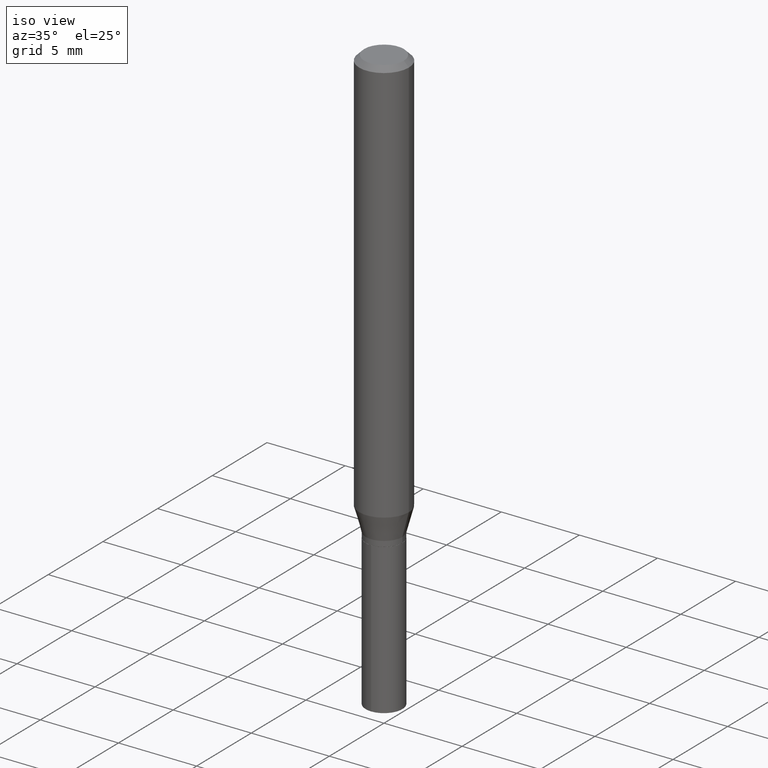
[diagram: clean part render]
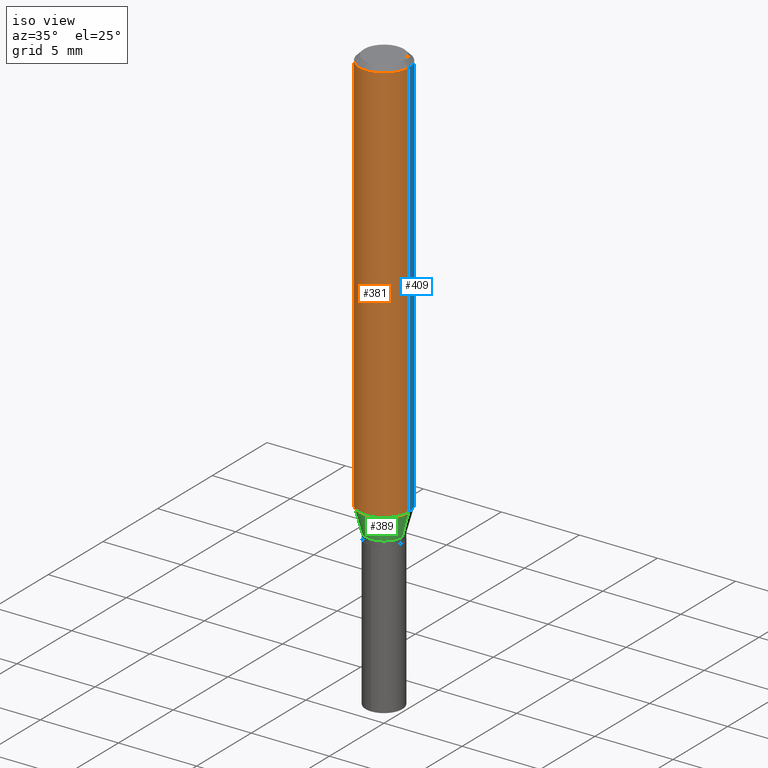
[diagram: same view with three faces highlighted in distinct colors, each labeled with its STEP entity id]
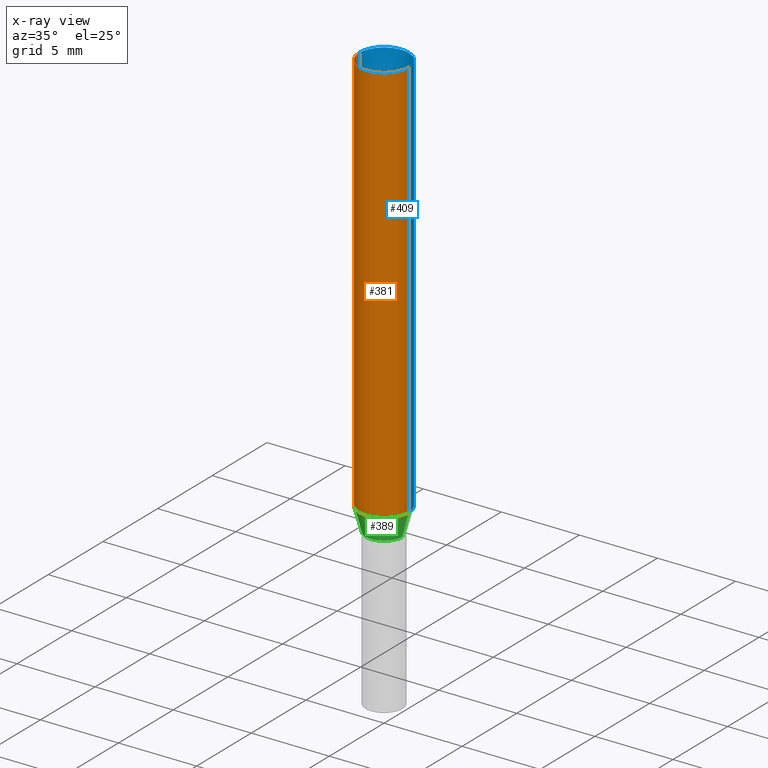
[diagram: x-ray of the same camera — body ghosted, the three highlighted faces saturated]
A machine part, iso view with three faces highlighted in distinct colors.
The next image is the same camera in x-ray (body ghosted, the three faces saturated) — at least one of them is partly hidden behind the body in this view.
Their STEP definitions:

[orange] entity #381 — the highlighted cylindrical surface (edge-blend (fillet) strip) has radius 1.5875 mm, axis along (-0, 0, 1).
#1 = LINE ( 'NONE', #158, #121 ) ;
#45 = AXIS2_PLACEMENT_3D ( 'NONE', #346, #351, #57 ) ;
#50 = DIRECTION ( 'NONE',  ( -2.445468806185136877E-29, 3.491481338843145188E-15, 1.000000000000000000 ) ) ;
#54 = LINE ( 'NONE', #465, #184 ) ;
#57 = DIRECTION ( 'NONE',  ( 1.000000000000000000, -6.982962677686266711E-15, 0.000000000000000000 ) ) ;
#60 = EDGE_CURVE ( 'NONE', #123, #269, #1, .T. ) ;
#70 = EDGE_LOOP ( 'NONE', ( #182, #419, #395, #254 ) ) ;
#105 = CARTESIAN_POINT ( 'NONE',  ( 0.06250000000000012490, -4.016789281031512616E-15, -1.025454174377005589 ) ) ;
#121 = VECTOR ( 'NONE', #304, 39.37007874015748143 ) ;
#122 = EDGE_CURVE ( 'NONE', #123, #454, #240, .T. ) ;
#123 = VERTEX_POINT ( 'NONE', #207 ) ;
#158 = CARTESIAN_POINT ( 'NONE',  ( -0.06250000000000006939, 4.440892098500631092E-16, -3.074334431409319267E-30 ) ) ;
#177 = CARTESIAN_POINT ( 'NONE',  ( 2.507716195611300644E-29, -3.580354113676120158E-15, -1.025454174377005589 ) ) ;
#182 = ORIENTED_EDGE ( 'NONE', *, *, #60, .F. ) ;
#184 = VECTOR ( 'NONE', #50, 39.37007874015748143 ) ;
#188 = CARTESIAN_POINT ( 'NONE',  ( -0.06250000000000000000, -1.367909605355765863E-15, -0.01250000000000008916 ) ) ;
#206 = CARTESIAN_POINT ( 'NONE',  ( 0.000000000000000000, 0.000000000000000000, 0.000000000000000000 ) ) ;
#207 = CARTESIAN_POINT ( 'NONE',  ( -0.06250000000000012490, -3.136264903826056358E-15, -1.025454174377005589 ) ) ;
#209 = DIRECTION ( 'NONE',  ( -2.445468806185136597E-29, 3.491481338843145583E-15, 1.000000000000000000 ) ) ;
#225 = AXIS2_PLACEMENT_3D ( 'NONE', #177, #385, #287 ) ;
#240 = CIRCLE ( 'NONE', #225, 0.06250000000000012490 ) ;
#254 = ORIENTED_EDGE ( 'NONE', *, *, #372, .F. ) ;
#269 = VERTEX_POINT ( 'NONE', #188 ) ;
#272 = CIRCLE ( 'NONE', #45, 0.06250000000000000000 ) ;
#287 = DIRECTION ( 'NONE',  ( 1.000000000000000000, -6.982962677686264344E-15, 0.000000000000000000 ) ) ;
#303 = VERTEX_POINT ( 'NONE', #411 ) ;
#304 = DIRECTION ( 'NONE',  ( -2.445468806185136877E-29, 3.491481338843145188E-15, 1.000000000000000000 ) ) ;
#346 = CARTESIAN_POINT ( 'NONE',  ( 3.056836007731442729E-31, -4.364351673553962300E-17, -0.01250000000000008916 ) ) ;
#349 = EDGE_CURVE ( 'NONE', #454, #303, #54, .T. ) ;
#351 = DIRECTION ( 'NONE',  ( -2.445468806185136597E-29, 3.491481338843145583E-15, 1.000000000000000000 ) ) ;
#372 = EDGE_CURVE ( 'NONE', #269, #303, #272, .T. ) ;
#381 = ADVANCED_FACE ( 'NONE', ( #393 ), #463, .T. ) ;
#385 = DIRECTION ( 'NONE',  ( -2.445468806185136597E-29, 3.491481338843145583E-15, 1.000000000000000000 ) ) ;
#393 = FACE_OUTER_BOUND ( 'NONE', #70, .T. ) ;
#395 = ORIENTED_EDGE ( 'NONE', *, *, #349, .T. ) ;
#411 = CARTESIAN_POINT ( 'NONE',  ( 0.06250000000000000000, -4.800786840909313294E-16, -0.01250000000000008916 ) ) ;
#419 = ORIENTED_EDGE ( 'NONE', *, *, #122, .T. ) ;
#435 = DIRECTION ( 'NONE',  ( 1.000000000000000000, -6.982962677686266711E-15, 4.876176775795935793E-29 ) ) ;
#454 = VERTEX_POINT ( 'NONE', #105 ) ;
#460 = AXIS2_PLACEMENT_3D ( 'NONE', #206, #209, #435 ) ;
#463 = CYLINDRICAL_SURFACE ( 'NONE', #460, 0.06250000000000006939 ) ;
#465 = CARTESIAN_POINT ( 'NONE',  ( 0.06250000000000006939, -4.364351673553921624E-16, 3.047610484872463374E-30 ) ) ;

[blue] entity #409 — the highlighted cylindrical surface (edge-blend (fillet) strip) has radius 1.5875 mm, axis along (-0, 0, 1).
#1 = LINE ( 'NONE', #158, #121 ) ;
#4 = ORIENTED_EDGE ( 'NONE', *, *, #170, .T. ) ;
#48 = CARTESIAN_POINT ( 'NONE',  ( 3.056836007731442729E-31, -4.364351673553962300E-17, -0.01250000000000008916 ) ) ;
#50 = DIRECTION ( 'NONE',  ( -2.445468806185136877E-29, 3.491481338843145188E-15, 1.000000000000000000 ) ) ;
#54 = LINE ( 'NONE', #465, #184 ) ;
#60 = EDGE_CURVE ( 'NONE', #123, #269, #1, .T. ) ;
#73 = AXIS2_PLACEMENT_3D ( 'NONE', #172, #174, #436 ) ;
#80 = ORIENTED_EDGE ( 'NONE', *, *, #349, .F. ) ;
#86 = ORIENTED_EDGE ( 'NONE', *, *, #60, .T. ) ;
#105 = CARTESIAN_POINT ( 'NONE',  ( 0.06250000000000012490, -4.016789281031512616E-15, -1.025454174377005589 ) ) ;
#121 = VECTOR ( 'NONE', #304, 39.37007874015748143 ) ;
#123 = VERTEX_POINT ( 'NONE', #207 ) ;
#133 = FACE_OUTER_BOUND ( 'NONE', #220, .T. ) ;
#135 = CYLINDRICAL_SURFACE ( 'NONE', #241, 0.06250000000000006939 ) ;
#158 = CARTESIAN_POINT ( 'NONE',  ( -0.06250000000000006939, 4.440892098500631092E-16, -3.074334431409319267E-30 ) ) ;
#170 = EDGE_CURVE ( 'NONE', #454, #123, #350, .T. ) ;
#172 = CARTESIAN_POINT ( 'NONE',  ( 2.507716195611300644E-29, -3.580354113676120158E-15, -1.025454174377005589 ) ) ;
#174 = DIRECTION ( 'NONE',  ( -2.445468806185136597E-29, 3.491481338843145583E-15, 1.000000000000000000 ) ) ;
#184 = VECTOR ( 'NONE', #50, 39.37007874015748143 ) ;
#188 = CARTESIAN_POINT ( 'NONE',  ( -0.06250000000000000000, -1.367909605355765863E-15, -0.01250000000000008916 ) ) ;
#200 = DIRECTION ( 'NONE',  ( -2.445468806185136597E-29, 3.491481338843145583E-15, 1.000000000000000000 ) ) ;
#203 = AXIS2_PLACEMENT_3D ( 'NONE', #48, #200, #314 ) ;
#207 = CARTESIAN_POINT ( 'NONE',  ( -0.06250000000000012490, -3.136264903826056358E-15, -1.025454174377005589 ) ) ;
#213 = CIRCLE ( 'NONE', #203, 0.06250000000000000000 ) ;
#215 = ORIENTED_EDGE ( 'NONE', *, *, #474, .F. ) ;
#220 = EDGE_LOOP ( 'NONE', ( #4, #86, #215, #80 ) ) ;
#241 = AXIS2_PLACEMENT_3D ( 'NONE', #280, #357, #429 ) ;
#269 = VERTEX_POINT ( 'NONE', #188 ) ;
#280 = CARTESIAN_POINT ( 'NONE',  ( 0.000000000000000000, 0.000000000000000000, 0.000000000000000000 ) ) ;
#303 = VERTEX_POINT ( 'NONE', #411 ) ;
#304 = DIRECTION ( 'NONE',  ( -2.445468806185136877E-29, 3.491481338843145188E-15, 1.000000000000000000 ) ) ;
#314 = DIRECTION ( 'NONE',  ( 1.000000000000000000, -6.982962677686266711E-15, 0.000000000000000000 ) ) ;
#349 = EDGE_CURVE ( 'NONE', #454, #303, #54, .T. ) ;
#350 = CIRCLE ( 'NONE', #73, 0.06250000000000012490 ) ;
#357 = DIRECTION ( 'NONE',  ( -2.445468806185136597E-29, 3.491481338843145583E-15, 1.000000000000000000 ) ) ;
#409 = ADVANCED_FACE ( 'NONE', ( #133 ), #135, .T. ) ;
#411 = CARTESIAN_POINT ( 'NONE',  ( 0.06250000000000000000, -4.800786840909313294E-16, -0.01250000000000008916 ) ) ;
#429 = DIRECTION ( 'NONE',  ( 1.000000000000000000, -6.982962677686266711E-15, 4.876176775795935793E-29 ) ) ;
#436 = DIRECTION ( 'NONE',  ( 1.000000000000000000, -6.982962677686264344E-15, 0.000000000000000000 ) ) ;
#454 = VERTEX_POINT ( 'NONE', #105 ) ;
#465 = CARTESIAN_POINT ( 'NONE',  ( 0.06250000000000006939, -4.364351673553921624E-16, 3.047610484872463374E-30 ) ) ;
#474 = EDGE_CURVE ( 'NONE', #303, #269, #213, .T. ) ;

[green] entity #389 — the highlighted conical surface has half-angle 15 deg.
#6 = ORIENTED_EDGE ( 'NONE', *, *, #24, .F. ) ;
#8 = CARTESIAN_POINT ( 'NONE',  ( 0.04624999999999999944, -4.115059905960530718E-15, -1.086100000000000287 ) ) ;
#10 = VECTOR ( 'NONE', #42, 39.37007874015748854 ) ;
#16 = DIRECTION ( 'NONE',  ( -2.445468806185136597E-29, 3.491481338843145583E-15, 1.000000000000000000 ) ) ;
#24 = EDGE_CURVE ( 'NONE', #84, #123, #415, .T. ) ;
#30 = CARTESIAN_POINT ( 'NONE',  ( 0.04624999999999999944, -4.115059905960530718E-15, -1.086100000000000287 ) ) ;
#42 = DIRECTION ( 'NONE',  ( -0.2588190451025212391, 5.211531920934549464E-15, 0.9659258262890679791 ) ) ;
#72 = LINE ( 'NONE', #30, #81 ) ;
#81 = VECTOR ( 'NONE', #221, 39.37007874015748854 ) ;
#84 = VERTEX_POINT ( 'NONE', #245 ) ;
#102 = DIRECTION ( 'NONE',  ( 1.000000000000000000, -6.982962677686265133E-15, 0.000000000000000000 ) ) ;
#105 = CARTESIAN_POINT ( 'NONE',  ( 0.06250000000000012490, -4.016789281031512616E-15, -1.025454174377005589 ) ) ;
#111 = ORIENTED_EDGE ( 'NONE', *, *, #300, .T. ) ;
#122 = EDGE_CURVE ( 'NONE', #123, #454, #240, .T. ) ;
#123 = VERTEX_POINT ( 'NONE', #207 ) ;
#177 = CARTESIAN_POINT ( 'NONE',  ( 2.507716195611300644E-29, -3.580354113676120158E-15, -1.025454174377005589 ) ) ;
#185 = EDGE_LOOP ( 'NONE', ( #6, #475, #111, #359 ) ) ;
#207 = CARTESIAN_POINT ( 'NONE',  ( -0.06250000000000012490, -3.136264903826056358E-15, -1.025454174377005589 ) ) ;
#221 = DIRECTION ( 'NONE',  ( 0.2588190451025212391, 1.565188264969622362E-15, 0.9659258262890679791 ) ) ;
#225 = AXIS2_PLACEMENT_3D ( 'NONE', #177, #385, #287 ) ;
#236 = CARTESIAN_POINT ( 'NONE',  ( 2.656023670397677438E-29, -3.792097882117540725E-15, -1.086100000000000287 ) ) ;
#240 = CIRCLE ( 'NONE', #225, 0.06250000000000012490 ) ;
#245 = CARTESIAN_POINT ( 'NONE',  ( -0.04624999999999999944, -3.486864791798743231E-15, -1.086100000000000287 ) ) ;
#252 = CONICAL_SURFACE ( 'NONE', #407, 0.04624999999999999944, 0.2617993877991499629 ) ;
#287 = DIRECTION ( 'NONE',  ( 1.000000000000000000, -6.982962677686264344E-15, 0.000000000000000000 ) ) ;
#300 = EDGE_CURVE ( 'NONE', #403, #454, #72, .T. ) ;
#317 = FACE_OUTER_BOUND ( 'NONE', #185, .T. ) ;
#337 = EDGE_CURVE ( 'NONE', #84, #403, #374, .T. ) ;
#359 = ORIENTED_EDGE ( 'NONE', *, *, #122, .F. ) ;
#361 = CARTESIAN_POINT ( 'NONE',  ( 2.656023670397677438E-29, -3.792097882117540725E-15, -1.086100000000000287 ) ) ;
#374 = CIRCLE ( 'NONE', #428, 0.04624999999999999944 ) ;
#377 = CARTESIAN_POINT ( 'NONE',  ( -0.04624999999999999944, -3.463471866828494688E-15, -1.086100000000000287 ) ) ;
#385 = DIRECTION ( 'NONE',  ( -2.445468806185136597E-29, 3.491481338843145583E-15, 1.000000000000000000 ) ) ;
#389 = ADVANCED_FACE ( 'NONE', ( #317 ), #252, .T. ) ;
#390 = DIRECTION ( 'NONE',  ( -2.445468806185136597E-29, 3.491481338843145583E-15, 1.000000000000000000 ) ) ;
#403 = VERTEX_POINT ( 'NONE', #8 ) ;
#407 = AXIS2_PLACEMENT_3D ( 'NONE', #361, #390, #421 ) ;
#415 = LINE ( 'NONE', #377, #10 ) ;
#421 = DIRECTION ( 'NONE',  ( 1.000000000000000000, -6.982962677686265133E-15, 0.000000000000000000 ) ) ;
#428 = AXIS2_PLACEMENT_3D ( 'NONE', #236, #16, #102 ) ;
#454 = VERTEX_POINT ( 'NONE', #105 ) ;
#475 = ORIENTED_EDGE ( 'NONE', *, *, #337, .T. ) ;